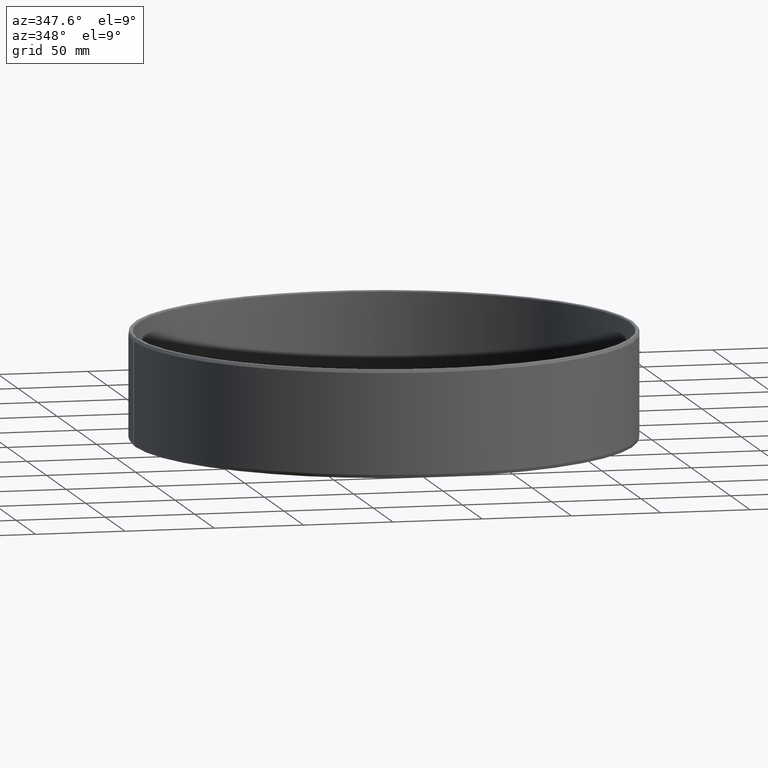
[diagram: clean part render]
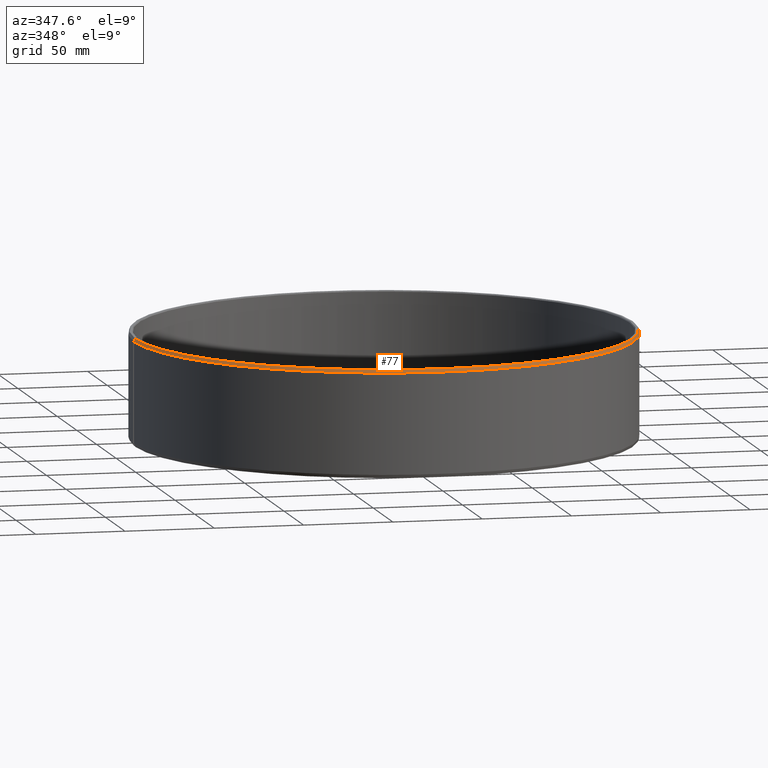
[diagram: same view with one face highlighted and labeled with its STEP entity id]
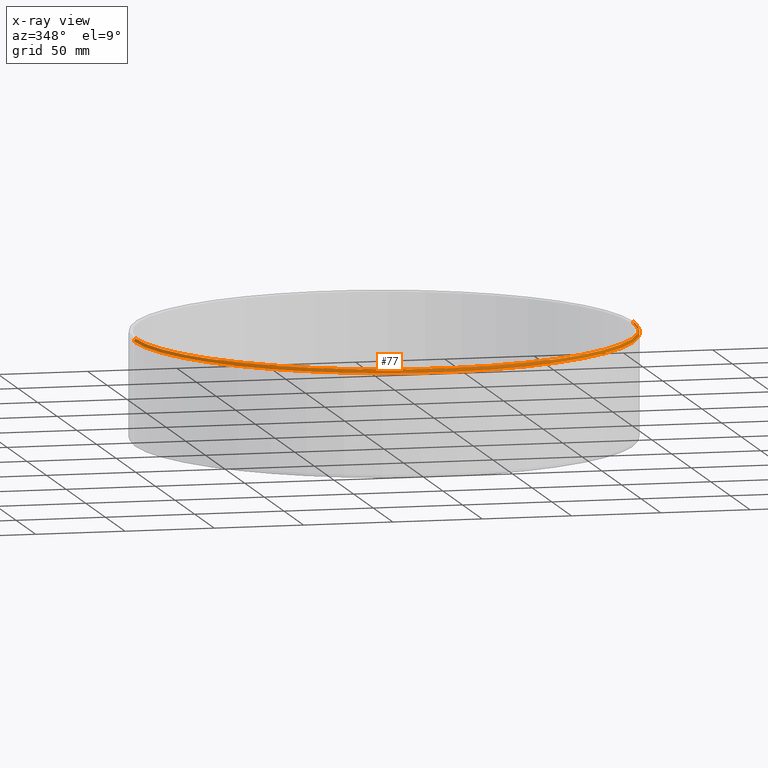
[diagram: x-ray of the same camera — body ghosted, the highlighted face saturated]
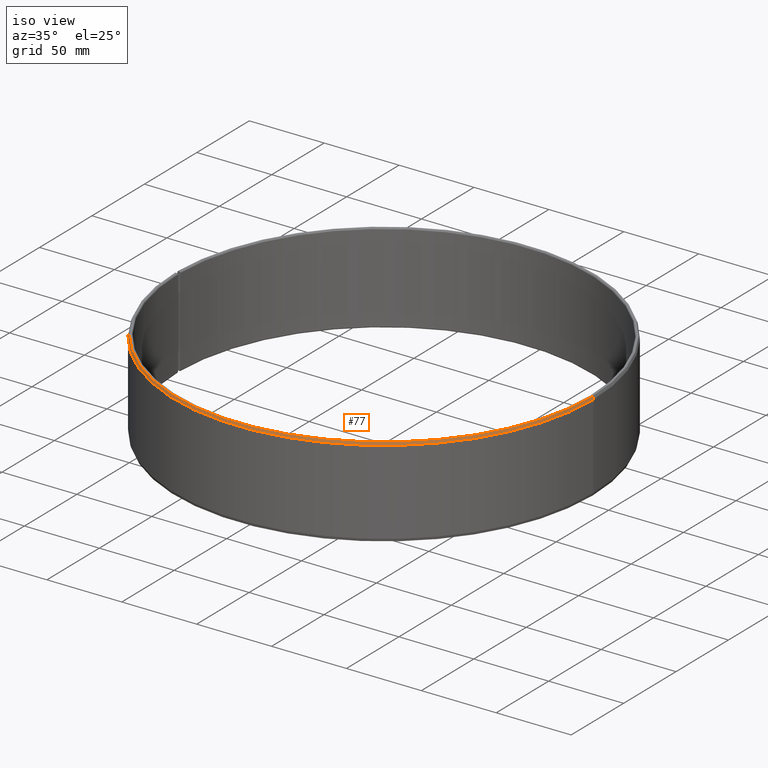
[diagram: same view with one face highlighted and labeled with its STEP entity id]
A machine part, auxiliary view. The second image highlights one B-rep face of the part: STEP entity #77.
The next image is the same camera in x-ray: the body ghosted, the highlighted face saturated — about 0% of this face is hidden behind the body in this view.
A second angle (iso view) of the same face is appended — the face is thin or edge-on in the first view.
In plain terms, the highlighted conical surface has half-angle 20 deg.
Its self-contained STEP definition (entity closure, byte-faithful):
#77=ADVANCED_FACE('',(#96),#97,.T.);
#96=FACE_OUTER_BOUND('',#128,.T.);
#97=CONICAL_SURFACE('',#129,139.67242678916,0.349065850398861);
#128=EDGE_LOOP('',(#170,#171,#172,#173));
#129=AXIS2_PLACEMENT_3D('',#174,#175,#176);
#170=ORIENTED_EDGE('',*,*,#287,.F.);
#171=ORIENTED_EDGE('',*,*,#288,.F.);
#172=ORIENTED_EDGE('',*,*,#289,.F.);
#173=ORIENTED_EDGE('',*,*,#290,.T.);
#174=CARTESIAN_POINT('',(3.27819032287254E-014,-3.76284329196533E-014,59.1));
#175=DIRECTION('',(-5.48707263966375E-016,6.09939603923743E-016,-1.0));
#176=DIRECTION('',(-1.0,1.89882151931499E-015,5.48707263966376E-016));
#287=EDGE_CURVE('',#331,#332,#333,.T.);
#288=EDGE_CURVE('',#334,#331,#335,.T.);
#289=EDGE_CURVE('',#336,#334,#337,.T.);
#290=EDGE_CURVE('',#336,#332,#338,.T.);
#331=VERTEX_POINT('',#397);
#332=VERTEX_POINT('',#398);
#333=LINE('',#399,#400);
#334=VERTEX_POINT('',#401);
#335=CIRCLE('',#402,139.344853578321);
#336=VERTEX_POINT('',#403);
#337=LINE('',#404,#405);
#338=CIRCLE('',#406,140.0);
#397=CARTESIAN_POINT('',(139.344853578321,-3.19833208034731E-013,59.9999999999999));
#398=CARTESIAN_POINT('',(140.0,-3.19620970211792E-013,58.1999999999999));
#399=CARTESIAN_POINT('',(139.67242678916,-3.19946381601507E-013,59.0999999999999));
#400=VECTOR('',#477,1.0);
#401=CARTESIAN_POINT('',(-139.344853578321,2.27109053331212E-013,60.0000000000001));
#402=AXIS2_PLACEMENT_3D('',#478,#479,#480);
#403=CARTESIAN_POINT('',(-140.0,2.29009672924984E-013,58.2000000000001));
#404=CARTESIAN_POINT('',(-140.0,2.29009672924984E-013,58.2000000000001));
#405=VECTOR('',#481,9.99999999999999);
#406=AXIS2_PLACEMENT_3D('',#482,#483,#484);
#477=DIRECTION('',(0.342020143325663,-1.18164850630513E-016,-0.93969262078591));
#478=CARTESIAN_POINT('',(3.32757397662951E-014,-3.8122269457223E-014,60.0));
#479=DIRECTION('',(5.48707263966375E-016,-6.09939603923743E-016,1.0));
#480=DIRECTION('',(-1.0,1.89882151931499E-015,5.48707263966376E-016));
#481=DIRECTION('',(0.342020143325664,-1.1650513751068E-015,0.93969262078591));
#482=CARTESIAN_POINT('',(3.22880666911556E-014,-3.71345963820835E-014,58.2));
#483=DIRECTION('',(5.48707263966375E-016,-6.09939603923743E-016,1.0));
#484=DIRECTION('',(-1.0,1.89882151931499E-015,5.48707263966376E-016));